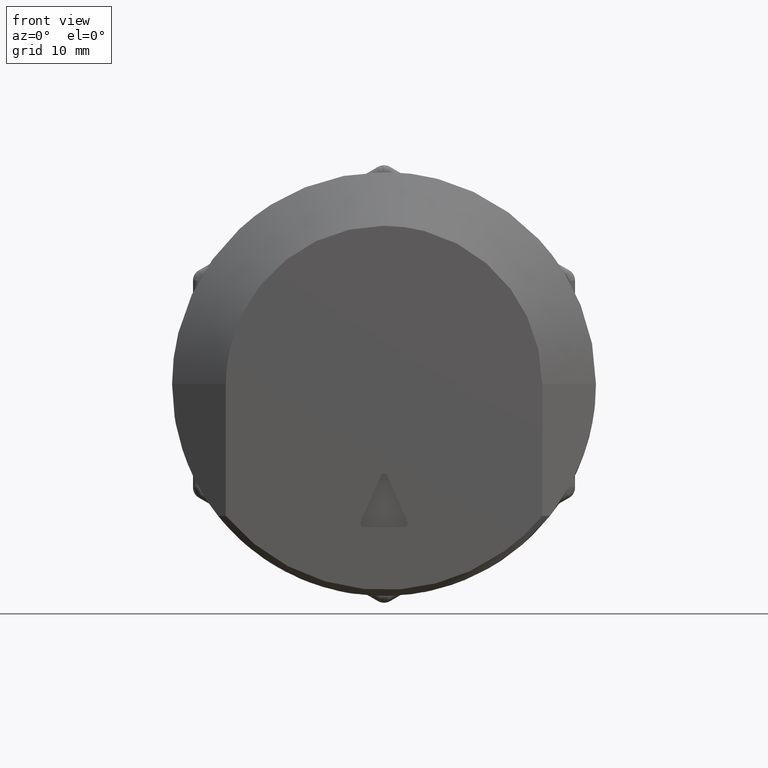
[diagram: clean part render]
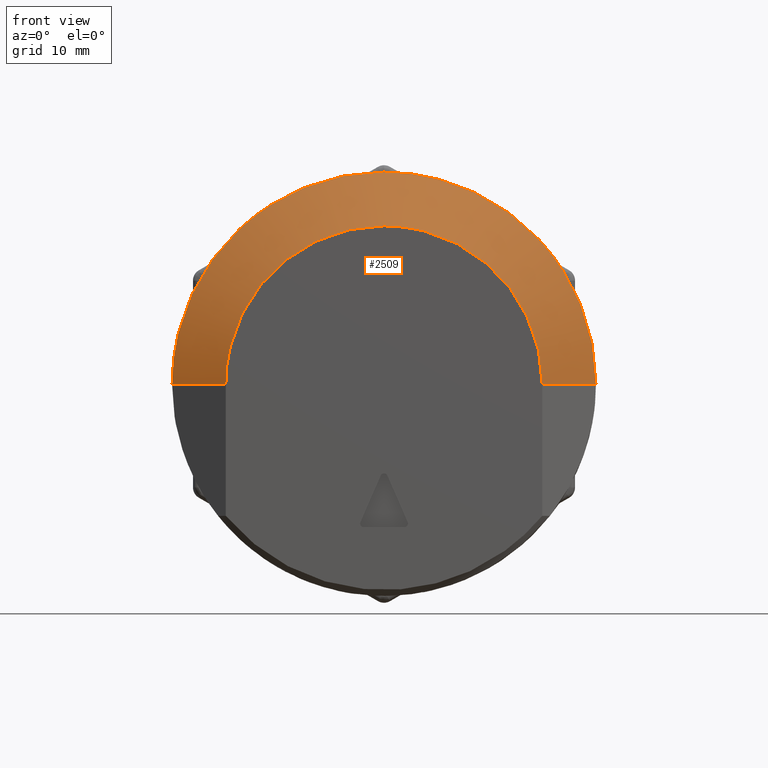
[diagram: same view with one face highlighted and labeled with its STEP entity id]
A machine part, front view. The second image highlights one B-rep face of the part: STEP entity #2509.
In plain terms, the highlighted face is a freeform B-spline surface patch.
Its self-contained STEP definition (entity closure, byte-faithful):
#1896=CARTESIAN_POINT('',(-5.800000000000001,12.107306605702950,12.979816492745311));
#1897=VERTEX_POINT('',#1896);
#1903=CARTESIAN_POINT('',(-5.800000000000000,0.000001065090910,17.749999999999972));
#1904=VERTEX_POINT('',#1903);
#1905=CARTESIAN_POINT('',(-5.800000000000000,0.000001065090910,17.749999999999972));
#1906=CARTESIAN_POINT('',(-5.799999999999983,0.798036926882497,17.750030957190120));
#1907=CARTESIAN_POINT('',(-5.800000000000040,2.394099621480562,17.642171542578339));
#1908=CARTESIAN_POINT('',(-5.799999999999977,4.983214241943204,17.111193657774610));
#1909=CARTESIAN_POINT('',(-5.800000000000028,7.397564968917640,16.208647686525872));
#1910=CARTESIAN_POINT('',(-5.799999999999986,9.889180442957699,14.823846585779380));
#1911=CARTESIAN_POINT('',(-5.800000000000018,11.320820988999159,13.713574716011671));
#1912=CARTESIAN_POINT('',(-5.800000000000001,12.107306605702950,12.979816492745311));
#1913=B_SPLINE_CURVE_WITH_KNOTS('',3,(#1905,#1906,#1907,#1908,#1909,#1910,#1911,#1912),.UNSPECIFIED.,.F.,.U.,(4,1,1,1,1,4),(0.000000012449643,2.394107098350048,4.788230219082760,7.910967220231180,10.096907487131260,13.323753582870969),.UNSPECIFIED.);
#1914=EDGE_CURVE('',#1904,#1897,#1913,.T.);
#1916=CARTESIAN_POINT('',(-5.800000000000001,-12.979816104936470,12.107306242603681));
#1917=VERTEX_POINT('',#1916);
#1918=CARTESIAN_POINT('',(-5.800000000000001,-12.979816104936470,12.107306242603681));
#1919=CARTESIAN_POINT('',(-5.799999999999989,-12.023238896623990,13.133284108558129));
#1920=CARTESIAN_POINT('',(-5.800000000000027,-10.127499346849390,14.734644396062190));
#1921=CARTESIAN_POINT('',(-5.799999999999979,-7.445514489878987,16.176737665541950));
#1922=CARTESIAN_POINT('',(-5.799999999999987,-5.097197698752839,17.048885084765018));
#1923=CARTESIAN_POINT('',(-5.800000000000030,-2.767501279045614,17.603913506310779));
#1924=CARTESIAN_POINT('',(-5.799999999999973,-0.947781021590621,17.750056118481432));
#1925=CARTESIAN_POINT('',(-5.800000000000000,0.000001065090910,17.749999999999972));
#1926=B_SPLINE_CURVE_WITH_KNOTS('',3,(#1918,#1919,#1920,#1921,#1922,#1923,#1924,#1925),.UNSPECIFIED.,.F.,.U.,(4,1,1,1,1,4),(0.000000014750404,4.208153362101553,7.392680136938377,9.098702141704813,11.714583164537990,14.557925204769470),.UNSPECIFIED.);
#1927=EDGE_CURVE('',#1917,#1904,#1926,.T.);
#1961=CARTESIAN_POINT('',(-5.800000000000000,-17.750000000000000,5.434191E-015));
#1962=VERTEX_POINT('',#1961);
#1963=CARTESIAN_POINT('',(-5.800000000000000,-17.750000000000000,5.434191E-015));
#1964=CARTESIAN_POINT('',(-5.799999999999948,-17.750222493347589,1.249125749408951));
#1965=CARTESIAN_POINT('',(-5.800000000000050,-17.543971684249769,3.192059796860999));
#1966=CARTESIAN_POINT('',(-5.799999999999996,-16.765935162379328,6.006081962025014));
#1967=CARTESIAN_POINT('',(-5.799999999999961,-15.765617572685230,8.304461128746260));
#1968=CARTESIAN_POINT('',(-5.800000000000095,-14.428975390275030,10.422332413326560));
#1969=CARTESIAN_POINT('',(-5.799999999999868,-13.453161910508880,11.599863107382220));
#1970=CARTESIAN_POINT('',(-5.800000000000001,-12.979816104936470,12.107306242603681));
#1971=B_SPLINE_CURVE_WITH_KNOTS('',3,(#1963,#1964,#1965,#1966,#1967,#1968,#1969,#1970),.UNSPECIFIED.,.F.,.U.,(4,1,1,1,1,4),(0.000000012452045,3.747308264132270,5.829143617883125,8.743706936359633,11.241924741244990,13.323754447582120),.UNSPECIFIED.);
#1972=EDGE_CURVE('',#1962,#1917,#1971,.T.);
#2009=CARTESIAN_POINT('',(-5.800000000000000,17.750000000000000,-3.260514E-015));
#2010=VERTEX_POINT('',#2009);
#2024=CARTESIAN_POINT('',(-5.800000000000001,12.107306605702950,12.979816492745311));
#2025=CARTESIAN_POINT('',(-5.800000000000011,13.133329423581429,12.023255627317340));
#2026=CARTESIAN_POINT('',(-5.799999999999987,14.463535314392480,10.448268192486600));
#2027=CARTESIAN_POINT('',(-5.800000000000019,15.995426471258380,7.825437347707940));
#2028=CARTESIAN_POINT('',(-5.799999999999971,16.923036490935541,5.574333650462606));
#2029=CARTESIAN_POINT('',(-5.800000000000043,17.592130095121352,2.843312288358081));
#2030=CARTESIAN_POINT('',(-5.799999999999930,17.750092260081921,1.023606256689556));
#2031=CARTESIAN_POINT('',(-5.800000000000000,17.750000000000000,-3.260514E-015));
#2032=B_SPLINE_CURVE_WITH_KNOTS('',3,(#2024,#2025,#2026,#2027,#2028,#2029,#2030,#2031),.UNSPECIFIED.,.F.,.U.,(4,1,1,1,1,4),(0.000000014745764,4.208153116911085,6.141629216462610,9.098701611568313,11.487115287807590,14.557924356539040),.UNSPECIFIED.);
#2033=EDGE_CURVE('',#1897,#2010,#2032,.T.);
#2413=CARTESIAN_POINT('',(-9.299999999999999,13.250000000000000,-2.433905E-015));
#2414=VERTEX_POINT('',#2413);
#2420=CARTESIAN_POINT('',(-5.800000000000000,17.750000000000000,-3.260514E-015));
#2421=CARTESIAN_POINT('',(-9.299999999999999,13.250000000000000,-2.433905E-015));
#2422=QUASI_UNIFORM_CURVE('',1,(#2420,#2421),.UNSPECIFIED.,.F.,.U.);
#2423=EDGE_CURVE('',#2010,#2414,#2422,.T.);
#2433=CARTESIAN_POINT('',(-9.299999999999999,-13.250000000000000,4.056509E-015));
#2434=VERTEX_POINT('',#2433);
#2442=CARTESIAN_POINT('',(-5.800000000000000,-17.750000000000000,5.434191E-015));
#2443=CARTESIAN_POINT('',(-9.299999999999999,-13.250000000000000,4.056509E-015));
#2444=QUASI_UNIFORM_CURVE('',1,(#2442,#2443),.UNSPECIFIED.,.F.,.U.);
#2445=EDGE_CURVE('',#1962,#2434,#2444,.T.);
#2450=CARTESIAN_POINT('',(-9.387499999999999,-13.136999764255631,-0.114644860109873));
#2451=CARTESIAN_POINT('',(-5.710312500000000,-17.864632243642369,-0.155902283720773));
#2452=CARTESIAN_POINT('',(-9.387499999999999,-13.255717992219687,13.489116628036394));
#2453=CARTESIAN_POINT('',(-5.710312500000000,-18.026073784424405,18.343465949291325));
#2454=CARTESIAN_POINT('',(-9.387499999999999,0.343899658394694,13.132998106866470));
#2455=CARTESIAN_POINT('',(-5.710312500000000,0.467659361816512,17.859190503602381));
#2456=CARTESIAN_POINT('',(-9.387499999999999,13.943517309009074,12.776879585696541));
#2457=CARTESIAN_POINT('',(-5.710312500000000,18.961392508057433,17.374915057913427));
#2458=CARTESIAN_POINT('',(-9.387499999999999,13.112995914267360,-0.802025188139188));
#2459=CARTESIAN_POINT('',(-5.710312500000000,17.831990090931150,-1.090651236458825));
#2467=(BOUNDED_SURFACE()B_SPLINE_SURFACE(1,2,((#2450,#2452,#2454,#2456,#2458),(#2451,#2453,#2455,#2457,#2459)),.UNSPECIFIED.,.F.,.F.,.U.)B_SPLINE_SURFACE_WITH_KNOTS((2,2),(3,2,3),(0.0,5.989484029973837),(0.0,30.333500959858601,60.667001919717187),.UNSPECIFIED.)GEOMETRIC_REPRESENTATION_ITEM()RATIONAL_B_SPLINE_SURFACE(((1.0,0.694658370458997,1.0,0.694658370458997,1.0),(1.0,0.694658370458997,1.0,0.694658370458997,1.0)))REPRESENTATION_ITEM('')SURFACE());
#2468=CARTESIAN_POINT('',(-9.299999999999999,0.000001232358252,13.249999999999940));
#2469=VERTEX_POINT('',#2468);
#2470=CARTESIAN_POINT('',(-9.299999999999999,0.000001232358252,13.249999999999940));
#2471=CARTESIAN_POINT('',(-9.300000000000003,1.056933942816228,13.250241939159331));
#2472=CARTESIAN_POINT('',(-9.299999999999988,2.818338529089590,13.038076955914910));
#2473=CARTESIAN_POINT('',(-9.299999999999999,4.909290075254574,12.347222611978991));
#2474=CARTESIAN_POINT('',(-9.299999999999972,6.450024874228683,11.606870720492839));
#2475=CARTESIAN_POINT('',(-9.299999999999997,8.059259216351414,10.594904980957610));
#2476=CARTESIAN_POINT('',(-9.299999999999995,9.727992567853736,9.110184646674039));
#2477=CARTESIAN_POINT('',(-9.300000000000066,11.155766621155299,7.257203172461264));
#2478=CARTESIAN_POINT('',(-9.299999999999661,12.289843212713681,5.151271870207066));
#2479=CARTESIAN_POINT('',(-9.300000000000841,13.062808457828750,2.737121226423890));
#2480=CARTESIAN_POINT('',(-9.299999999999338,13.250090593511320,0.894312349928282));
#2481=CARTESIAN_POINT('',(-9.299999999999999,13.250000000000000,-2.433905E-015));
#2482=B_SPLINE_CURVE_WITH_KNOTS('',3,(#2470,#2471,#2472,#2473,#2474,#2475,#2476,#2477,#2478,#2479,#2480,#2481),.UNSPECIFIED.,.F.,.U.,(4,1,1,1,1,1,1,1,1,4),(0.000000056498536,3.170737530708692,5.284572417116973,6.585392662875684,8.292720743223285,10.975639766367189,13.252072419086860,15.284606344395289,18.130147366655379,20.813083285092279),.UNSPECIFIED.);
#2483=EDGE_CURVE('',#2469,#2414,#2482,.T.);
#2484=ORIENTED_EDGE('',*,*,#2483,.F.);
#2485=CARTESIAN_POINT('',(-9.299999999999999,-13.250000000000000,4.056509E-015));
#2486=CARTESIAN_POINT('',(-9.299999999999994,-13.250261674880671,1.056940590250158));
#2487=CARTESIAN_POINT('',(-9.300000000000066,-13.047823872326781,2.737021499851848));
#2488=CARTESIAN_POINT('',(-9.299999999999896,-12.318773401365760,5.013943218158486));
#2489=CARTESIAN_POINT('',(-9.300000000000175,-11.533947844661490,6.597230792751647));
#2490=CARTESIAN_POINT('',(-9.299999999999645,-10.599304103080510,7.995958710563375));
#2491=CARTESIAN_POINT('',(-9.300000000000599,-9.585429846120217,9.200926651589828));
#2492=CARTESIAN_POINT('',(-9.299999999999827,-8.124485443060143,10.541571508031931));
#2493=CARTESIAN_POINT('',(-9.299999999999972,-6.484820603263851,11.615455136990080));
#2494=CARTESIAN_POINT('',(-9.300000000000068,-4.556991006462476,12.491288500791750));
#2495=CARTESIAN_POINT('',(-9.299999999999924,-2.493187096370489,13.089799477950301));
#2496=CARTESIAN_POINT('',(-9.300000000000015,-0.867211020944396,13.250101633506681));
#2497=CARTESIAN_POINT('',(-9.299999999999999,0.000001232358252,13.249999999999940));
#2498=B_SPLINE_CURVE_WITH_KNOTS('',3,(#2485,#2486,#2487,#2488,#2489,#2490,#2491,#2492,#2493,#2494,#2495,#2496,#2497),.UNSPECIFIED.,.F.,.U.,(4,1,1,1,1,1,1,1,1,1,4),(0.000000056365703,3.170737742318671,5.040668732304534,7.154502990935610,8.455320873680932,10.081368648733440,11.869935862637149,14.390295058362780,15.935019673049020,18.211467892253548,20.813084674249410),.UNSPECIFIED.);
#2499=EDGE_CURVE('',#2434,#2469,#2498,.T.);
#2500=ORIENTED_EDGE('',*,*,#2499,.F.);
#2501=ORIENTED_EDGE('',*,*,#2445,.F.);
#2502=ORIENTED_EDGE('',*,*,#1972,.T.);
#2503=ORIENTED_EDGE('',*,*,#1927,.T.);
#2504=ORIENTED_EDGE('',*,*,#1914,.T.);
#2505=ORIENTED_EDGE('',*,*,#2033,.T.);
#2506=ORIENTED_EDGE('',*,*,#2423,.T.);
#2507=EDGE_LOOP('',(#2484,#2500,#2501,#2502,#2503,#2504,#2505,#2506));
#2508=FACE_OUTER_BOUND('',#2507,.T.);
#2509=ADVANCED_FACE('',(#2508),#2467,.T.);